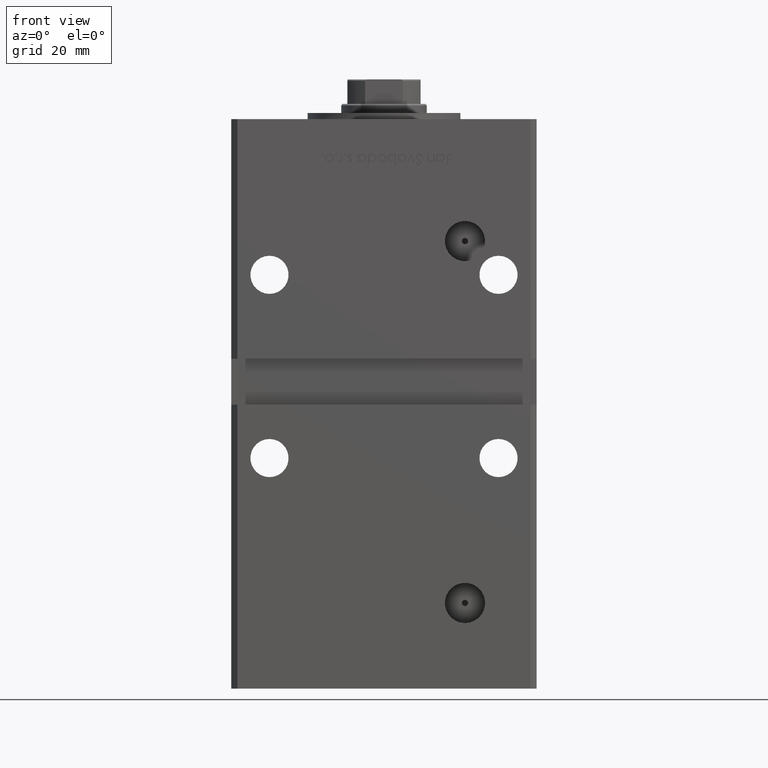
[diagram: clean part render]
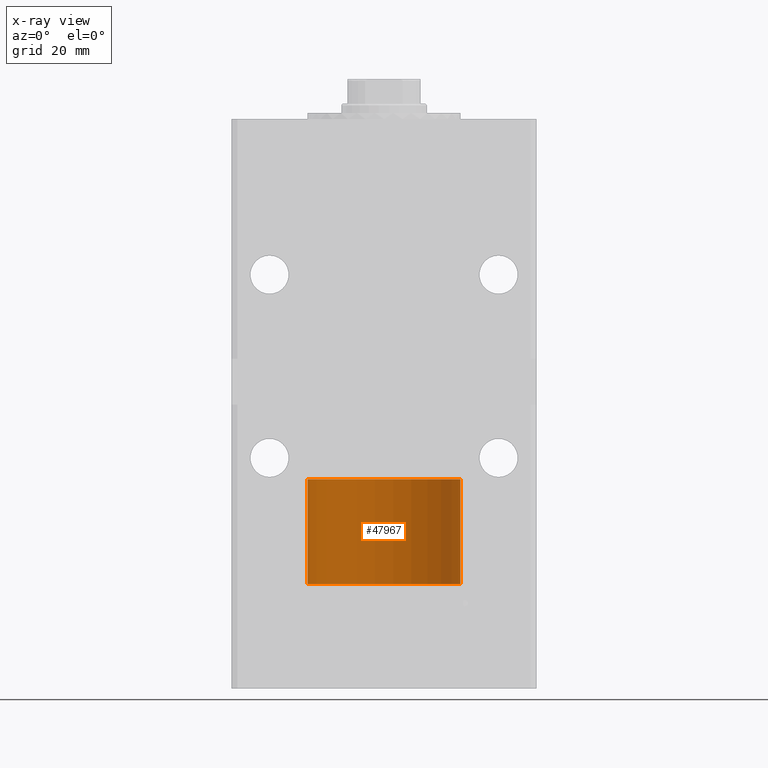
[diagram: x-ray — body ghosted, one internal face saturated and labeled with its STEP entity id]
A machine part, front view, then the same camera in x-ray: the body is ghosted and one INTERNAL B-rep face — a face not visible from any outside direction — is saturated and labeled: STEP entity #47967.
In plain terms, the highlighted cylindrical surface (partial cylindrical patch) has radius 25 mm, axis along (-0, -0, -1).
Its self-contained STEP definition (entity closure, byte-faithful):
#1729 = AXIS2_PLACEMENT_3D ( 'NONE', #7776, #8024, #3738 ) ;
#1879 = AXIS2_PLACEMENT_3D ( 'NONE', #23186, #27492, #39593 ) ;
#3738 = DIRECTION ( 'NONE',  ( 1.000000000000000000, 0.000000000000000000, 0.000000000000000000 ) ) ;
#3918 = EDGE_CURVE ( 'NONE', #50225, #52356, #45837, .T. ) ;
#6652 = VECTOR ( 'NONE', #27173, 1000.000000000000000 ) ;
#7776 = CARTESIAN_POINT ( 'NONE',  ( 0.000000000000000000, 0.000000000000000000, 34.25000000000000000 ) ) ;
#8024 = DIRECTION ( 'NONE',  ( 0.000000000000000000, 0.000000000000000000, 1.000000000000000000 ) ) ;
#8565 = CIRCLE ( 'NONE', #1729, 25.00000000000000000 ) ;
#10340 = ORIENTED_EDGE ( 'NONE', *, *, #39216, .F. ) ;
#10591 = EDGE_LOOP ( 'NONE', ( #49134, #35017, #20614, #10340 ) ) ;
#14528 = EDGE_CURVE ( 'NONE', #18596, #50225, #32254, .T. ) ;
#15128 = CYLINDRICAL_SURFACE ( 'NONE', #1879, 25.00000000000000000 ) ;
#16611 = AXIS2_PLACEMENT_3D ( 'NONE', #46677, #22456, #46941 ) ;
#18596 = VERTEX_POINT ( 'NONE', #52593 ) ;
#20570 = VERTEX_POINT ( 'NONE', #35408 ) ;
#20614 = ORIENTED_EDGE ( 'NONE', *, *, #3918, .T. ) ;
#22456 = DIRECTION ( 'NONE',  ( 0.000000000000000000, 0.000000000000000000, 1.000000000000000000 ) ) ;
#23186 = CARTESIAN_POINT ( 'NONE',  ( 0.000000000000000000, 0.000000000000000000, 34.25000000000000000 ) ) ;
#27173 = DIRECTION ( 'NONE',  ( -0.000000000000000000, -0.000000000000000000, -1.000000000000000000 ) ) ;
#27492 = DIRECTION ( 'NONE',  ( -0.000000000000000000, -0.000000000000000000, -1.000000000000000000 ) ) ;
#28881 = LINE ( 'NONE', #40206, #47972 ) ;
#32254 = LINE ( 'NONE', #44375, #6652 ) ;
#33182 = DIRECTION ( 'NONE',  ( -0.000000000000000000, -0.000000000000000000, -1.000000000000000000 ) ) ;
#35017 = ORIENTED_EDGE ( 'NONE', *, *, #14528, .T. ) ;
#35408 = CARTESIAN_POINT ( 'NONE',  ( -25.00000000000000000, 0.000000000000000000, 34.25000000000000000 ) ) ;
#39216 = EDGE_CURVE ( 'NONE', #20570, #52356, #28881, .T. ) ;
#39593 = DIRECTION ( 'NONE',  ( -1.000000000000000000, 0.000000000000000000, 0.000000000000000000 ) ) ;
#40206 = CARTESIAN_POINT ( 'NONE',  ( -25.00000000000000000, 0.000000000000000000, 34.25000000000000000 ) ) ;
#40832 = CARTESIAN_POINT ( 'NONE',  ( 25.00000000000000000, 3.061616997868383043E-15, 0.000000000000000000 ) ) ;
#42636 = EDGE_CURVE ( 'NONE', #18596, #20570, #8565, .T. ) ;
#43637 = FACE_OUTER_BOUND ( 'NONE', #10591, .T. ) ;
#44375 = CARTESIAN_POINT ( 'NONE',  ( 25.00000000000000000, 3.061616997868383043E-15, 34.25000000000000000 ) ) ;
#45837 = CIRCLE ( 'NONE', #16611, 25.00000000000000000 ) ;
#46677 = CARTESIAN_POINT ( 'NONE',  ( 0.000000000000000000, 0.000000000000000000, 0.000000000000000000 ) ) ;
#46941 = DIRECTION ( 'NONE',  ( 1.000000000000000000, 0.000000000000000000, 0.000000000000000000 ) ) ;
#47517 = CARTESIAN_POINT ( 'NONE',  ( -25.00000000000000000, 0.000000000000000000, 0.000000000000000000 ) ) ;
#47967 = ADVANCED_FACE ( 'NONE', ( #43637 ), #15128, .T. ) ;
#47972 = VECTOR ( 'NONE', #33182, 1000.000000000000000 ) ;
#49134 = ORIENTED_EDGE ( 'NONE', *, *, #42636, .F. ) ;
#50225 = VERTEX_POINT ( 'NONE', #40832 ) ;
#52356 = VERTEX_POINT ( 'NONE', #47517 ) ;
#52593 = CARTESIAN_POINT ( 'NONE',  ( 25.00000000000000000, 3.061616997868383043E-15, 34.25000000000000000 ) ) ;